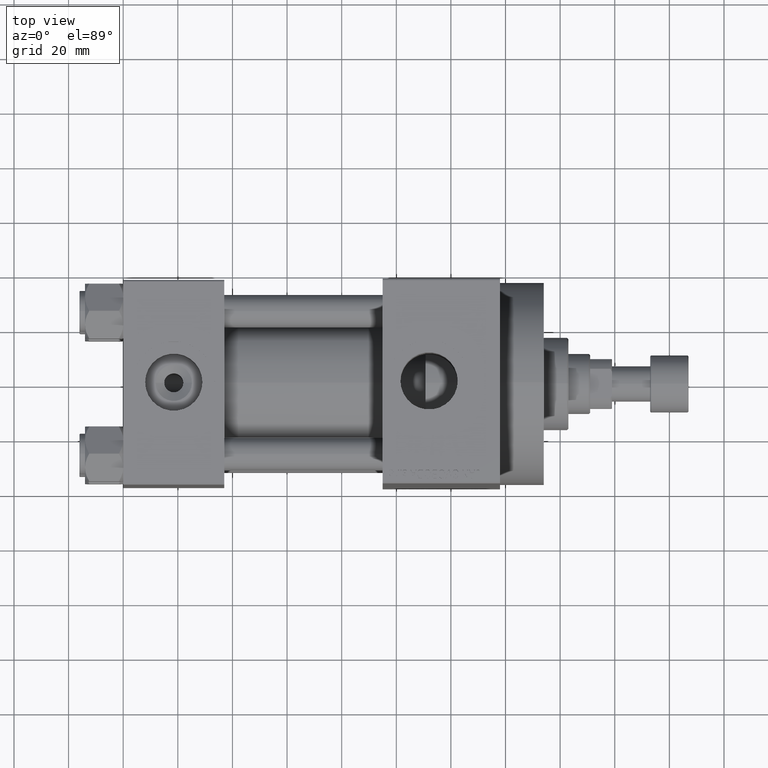
[diagram: clean part render]
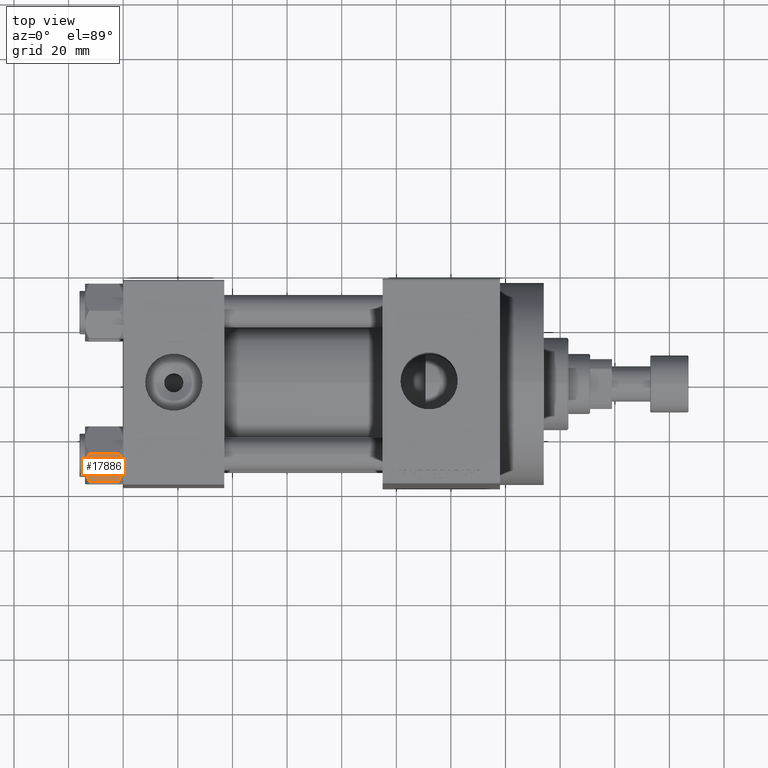
[diagram: same view with one face highlighted and labeled with its STEP entity id]
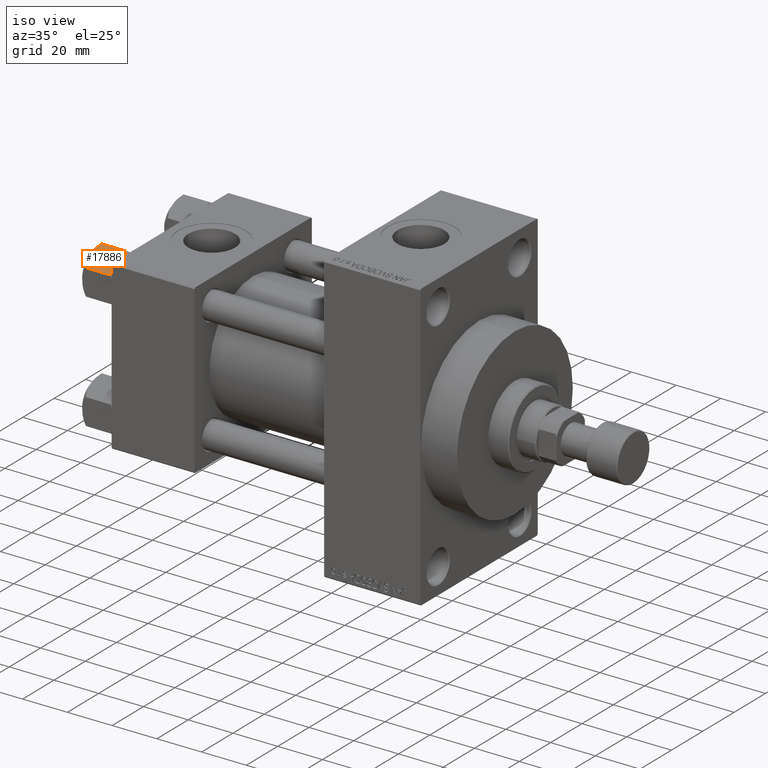
[diagram: same view with one face highlighted and labeled with its STEP entity id]
A machine part, top view. The second image highlights one B-rep face of the part: STEP entity #17886.
A second angle (iso view) of the same face is appended — the face is thin or edge-on in the first view.
In plain terms, the highlighted planar face has unit normal (0, 0.5, -0.866).
Its self-contained STEP definition (entity closure, byte-faithful):
#82 = CARTESIAN_POINT ( 'NONE',  ( -5.809999999999997833, 10.06321519197518022, -12.44321519197518633 ) ) ;
#426 = CARTESIAN_POINT ( 'NONE',  ( -8.202333004087897450, 5.919572880271055659, -0.03994118060690620559 ) ) ;
#500 = CARTESIAN_POINT ( 'NONE',  ( -9.729165168613654657, 3.275021996682086378, -13.80960203119266261 ) ) ;
#1128 = ORIENTED_EDGE ( 'NONE', *, *, #1606, .F. ) ;
#1606 = EDGE_CURVE ( 'NONE', #7430, #45658, #24117, .T. ) ;
#1661 = CARTESIAN_POINT ( 'NONE',  ( -11.61999999999999922, 6.288644352490894150E-15, -14.00000000000000000 ) ) ;
#2142 = VERTEX_POINT ( 'NONE', #31687 ) ;
#4606 = EDGE_LOOP ( 'NONE', ( #1128, #23966, #14062, #24789, #30363, #37671 ) ) ;
#7155 = CARTESIAN_POINT ( 'NONE',  ( -8.715000000000003411, 5.031607595987592774, 0.000000000000000000 ) ) ;
#7430 = VERTEX_POINT ( 'NONE', #46767 ) ;
#7922 = CARTESIAN_POINT ( 'NONE',  ( -5.809999999999997833, 10.06321519197518022, -12.44321519197518633 ) ) ;
#8912 = CARTESIAN_POINT ( 'NONE',  ( -9.716999946243694453, 3.296092779912229265, -0.1545239700039824915 ) ) ;
#9946 = CARTESIAN_POINT ( 'NONE',  ( -8.715000000000003411, 5.031607595987592774, -14.00000000000000000 ) ) ;
#10902 = CARTESIAN_POINT ( 'NONE',  ( -8.209704053696567527, 5.906805847843728863, -14.00000000000000355 ) ) ;
#11488 = CARTESIAN_POINT ( 'NONE',  ( -6.731401448974986934, 8.467301068182916168, -0.7141438259524646170 ) ) ;
#11606 = EDGE_CURVE ( 'NONE', #45658, #40632, #29769, .T. ) ;
#12121 = EDGE_CURVE ( 'NONE', #7430, #2142, #42104, .T. ) ;
#12308 = EDGE_CURVE ( 'NONE', #40632, #18385, #25248, .T. ) ;
#13149 = VECTOR ( 'NONE', #39680, 1000.000000000000000 ) ;
#14062 = ORIENTED_EDGE ( 'NONE', *, *, #24377, .F. ) ;
#15093 = CARTESIAN_POINT ( 'NONE',  ( -6.265545725125282850, 9.274186850887385702, -1.101239082899533539 ) ) ;
#16582 = EDGE_CURVE ( 'NONE', #18385, #25921, #18496, .T. ) ;
#16605 = CARTESIAN_POINT ( 'NONE',  ( -11.16498164529022219, 0.7881149087337359083, -1.101766453314949379 ) ) ;
#16772 = B_SPLINE_CURVE_WITH_KNOTS ( 'NONE', 3,
 ( #31770, #41662, #8912, #23610, #16605, #38278 ),
 .UNSPECIFIED., .F., .F.,
 ( 4, 2, 4 ),
 ( 0.006022845781655589842, 0.009013049135303633289, 0.01200325248895167674 ),
 .UNSPECIFIED. ) ;
#17875 = AXIS2_PLACEMENT_3D ( 'NONE', #29968, #45116, #44645 ) ;
#17886 = ADVANCED_FACE ( 'NONE', ( #41042 ), #37189, .F. ) ;
#18316 = CARTESIAN_POINT ( 'NONE',  ( -9.974696630283190757, 2.849749030213796885, -13.69973261901326111 ) ) ;
#18379 = CARTESIAN_POINT ( 'NONE',  ( -6.733375043383497349, 8.463882702393844326, -13.28854452935655317 ) ) ;
#18385 = VERTEX_POINT ( 'NONE', #41724 ) ;
#18496 = B_SPLINE_CURVE_WITH_KNOTS ( 'NONE', 3,
 ( #47353, #15093, #11488, #25706, #43750, #426, #25949, #7155 ),
 .UNSPECIFIED., .F., .F.,
 ( 4, 2, 2, 4 ),
 ( 2.544312114902182352E-07, 0.003011550106433540791, 0.004517197944044565316, 0.006022845781655589842 ),
 .UNSPECIFIED. ) ;
#18559 = CARTESIAN_POINT ( 'NONE',  ( -9.227666995912100489, 4.143642311704128112, -13.96005881939309212 ) ) ;
#22173 = CARTESIAN_POINT ( 'NONE',  ( -8.715000000000003411, 5.031607595987592774, -14.00000000000000000 ) ) ;
#23610 = CARTESIAN_POINT ( 'NONE',  ( -10.69662495661650148, 1.599332489581337668, -0.7114554706434472742 ) ) ;
#23966 = ORIENTED_EDGE ( 'NONE', *, *, #12121, .T. ) ;
#24117 = B_SPLINE_CURVE_WITH_KNOTS ( 'NONE', 3,
 ( #28901, #43589, #36596, #18316, #500, #18559, #44058, #22173 ),
 .UNSPECIFIED., .F., .F.,
 ( 4, 2, 2, 4 ),
 ( 2.544312114905218436E-07, 0.003011550106433537322, 0.004517197944044560112, 0.006022845781655582903 ),
 .UNSPECIFIED. ) ;
#24377 = EDGE_CURVE ( 'NONE', #25921, #2142, #16772, .T. ) ;
#24789 = ORIENTED_EDGE ( 'NONE', *, *, #16582, .F. ) ;
#25248 = LINE ( 'NONE', #46659, #13149 ) ;
#25600 = CARTESIAN_POINT ( 'NONE',  ( -7.713000053756306151, 6.767122412062953174, -13.84547602999602134 ) ) ;
#25706 = CARTESIAN_POINT ( 'NONE',  ( -7.455303369716805406, 7.213466161761384221, -0.3002673809867362764 ) ) ;
#25921 = VERTEX_POINT ( 'NONE', #45571 ) ;
#25949 = CARTESIAN_POINT ( 'NONE',  ( -8.460569896449618099, 5.472293462311865753, 3.939644352451667145E-15 ) ) ;
#28901 = CARTESIAN_POINT ( 'NONE',  ( -11.61999999999999922, 6.270720075510426383E-15, -12.44321519197518988 ) ) ;
#29769 = B_SPLINE_CURVE_WITH_KNOTS ( 'NONE', 3,
 ( #36658, #10902, #25600, #18379, #33057, #82 ),
 .UNSPECIFIED., .F., .F.,
 ( 4, 2, 4 ),
 ( 0.006022845781655582903, 0.009013049135303629819, 0.01200325248895167674 ),
 .UNSPECIFIED. ) ;
#29968 = CARTESIAN_POINT ( 'NONE',  ( -11.61999999999999922, 6.288644352490894150E-15, -14.00000000000000000 ) ) ;
#30363 = ORIENTED_EDGE ( 'NONE', *, *, #12308, .F. ) ;
#31687 = CARTESIAN_POINT ( 'NONE',  ( -11.61999999999999922, 6.270720075409452187E-15, -1.556784808024810562 ) ) ;
#31770 = CARTESIAN_POINT ( 'NONE',  ( -8.715000000000003411, 5.031607595987592774, 0.000000000000000000 ) ) ;
#33057 = CARTESIAN_POINT ( 'NONE',  ( -6.265018354709773973, 9.275100283241455301, -12.89823354668504862 ) ) ;
#35441 = VECTOR ( 'NONE', #42572, 1000.000000000000000 ) ;
#36596 = CARTESIAN_POINT ( 'NONE',  ( -10.69859855102500923, 1.595914123792268713, -13.28585617404753805 ) ) ;
#36658 = CARTESIAN_POINT ( 'NONE',  ( -8.715000000000003411, 5.031607595987592774, -14.00000000000000000 ) ) ;
#37189 = PLANE ( 'NONE',  #17875 ) ;
#37671 = ORIENTED_EDGE ( 'NONE', *, *, #11606, .F. ) ;
#38278 = CARTESIAN_POINT ( 'NONE',  ( -11.61999999999999922, 6.270720075409452187E-15, -1.556784808024810562 ) ) ;
#39680 = DIRECTION ( 'NONE',  ( -0.000000000000000000, -0.000000000000000000, 1.000000000000000000 ) ) ;
#40632 = VERTEX_POINT ( 'NONE', #7922 ) ;
#41042 = FACE_OUTER_BOUND ( 'NONE', #4606, .T. ) ;
#41662 = CARTESIAN_POINT ( 'NONE',  ( -9.220295946303428636, 4.156409344131455796, 3.796401669593772542E-15 ) ) ;
#41724 = CARTESIAN_POINT ( 'NONE',  ( -5.809999999999997833, 10.06321519197518022, -1.556784808024814115 ) ) ;
#42104 = LINE ( 'NONE', #1661, #35441 ) ;
#42572 = DIRECTION ( 'NONE',  ( -0.000000000000000000, -0.000000000000000000, 1.000000000000000000 ) ) ;
#43589 = CARTESIAN_POINT ( 'NONE',  ( -11.16445427487471420, 0.7890283410878028425, -12.89876091710047490 ) ) ;
#43750 = CARTESIAN_POINT ( 'NONE',  ( -7.700834831386344170, 6.788193195293096949, -0.1903979688073401122 ) ) ;
#44058 = CARTESIAN_POINT ( 'NONE',  ( -8.969430103550379840, 4.590921729663318018, -14.00000000000000355 ) ) ;
#44645 = DIRECTION ( 'NONE',  ( 0.5000000000000001110, 0.8660254037844384856, 0.000000000000000000 ) ) ;
#45116 = DIRECTION ( 'NONE',  ( 0.8660254037844385966, -0.5000000000000002220, 0.000000000000000000 ) ) ;
#45571 = CARTESIAN_POINT ( 'NONE',  ( -8.715000000000003411, 5.031607595987592774, 0.000000000000000000 ) ) ;
#45658 = VERTEX_POINT ( 'NONE', #9946 ) ;
#46659 = CARTESIAN_POINT ( 'NONE',  ( -5.809999999999997833, 10.06321519197518022, -14.00000000000000000 ) ) ;
#46767 = CARTESIAN_POINT ( 'NONE',  ( -11.61999999999999922, 6.270720075510426383E-15, -12.44321519197518988 ) ) ;
#47353 = CARTESIAN_POINT ( 'NONE',  ( -5.809999999999997833, 10.06321519197518022, -1.556784808024814115 ) ) ;